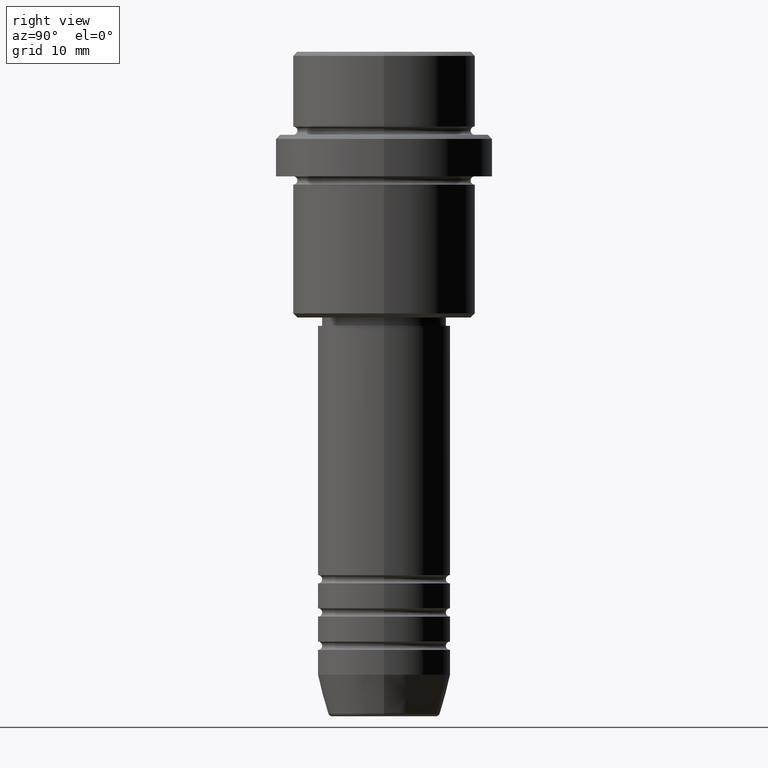
[diagram: clean part render]
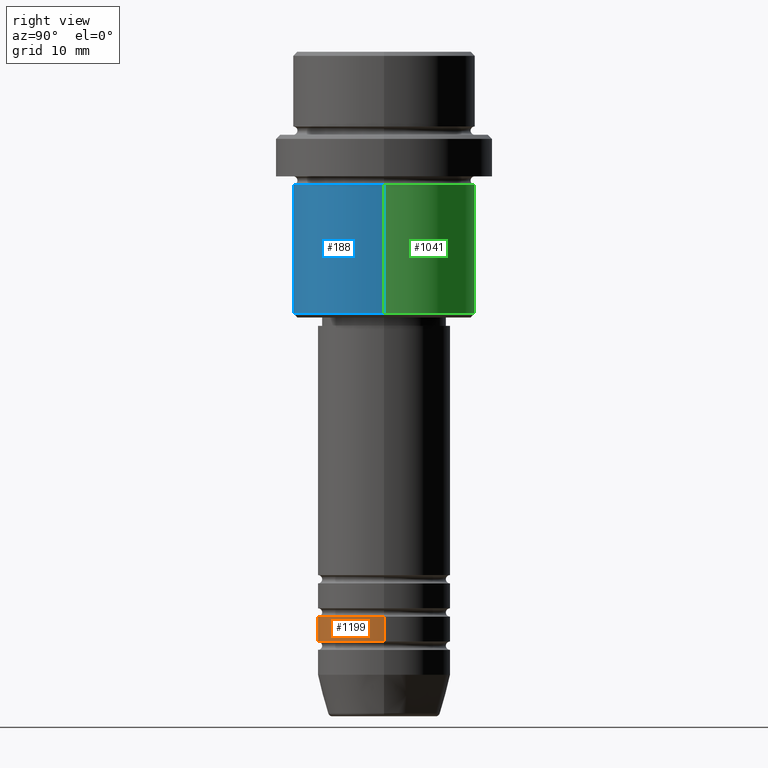
[diagram: same view with three faces highlighted in distinct colors, each labeled with its STEP entity id]
A machine part, right view with three faces highlighted in distinct colors.
Their STEP definitions:

[orange] entity #1199 — the highlighted cylindrical surface (partial cylindrical patch) has radius 8 mm, axis along (-0, -0, 1).
#118 = AXIS2_PLACEMENT_3D ( 'NONE', #1369, #1280, #287 ) ;
#162 = CARTESIAN_POINT ( 'NONE',  ( 8.000000000000000000, 0.000000000000000000, 0.000000000000000000 ) ) ;
#185 = LINE ( 'NONE', #162, #470 ) ;
#272 = DIRECTION ( 'NONE',  ( -0.000000000000000000, -0.000000000000000000, 1.000000000000000000 ) ) ;
#278 = DIRECTION ( 'NONE',  ( -0.000000000000000000, -0.000000000000000000, 1.000000000000000000 ) ) ;
#287 = DIRECTION ( 'NONE',  ( 1.000000000000000000, 0.000000000000000000, 0.000000000000000000 ) ) ;
#329 = VECTOR ( 'NONE', #524, 1000.000000000000000 ) ;
#347 = CIRCLE ( 'NONE', #118, 8.000000000000000000 ) ;
#408 = CYLINDRICAL_SURFACE ( 'NONE', #467, 8.000000000000000000 ) ;
#415 = VERTEX_POINT ( 'NONE', #1198 ) ;
#451 = ORIENTED_EDGE ( 'NONE', *, *, #1340, .F. ) ;
#467 = AXIS2_PLACEMENT_3D ( 'NONE', #841, #272, #1054 ) ;
#470 = VECTOR ( 'NONE', #1165, 1000.000000000000000 ) ;
#495 = AXIS2_PLACEMENT_3D ( 'NONE', #820, #278, #623 ) ;
#503 = VERTEX_POINT ( 'NONE', #906 ) ;
#524 = DIRECTION ( 'NONE',  ( -0.000000000000000000, -0.000000000000000000, 1.000000000000000000 ) ) ;
#570 = VERTEX_POINT ( 'NONE', #675 ) ;
#623 = DIRECTION ( 'NONE',  ( 1.000000000000000000, 0.000000000000000000, 0.000000000000000000 ) ) ;
#656 = EDGE_CURVE ( 'NONE', #570, #503, #185, .T. ) ;
#675 = CARTESIAN_POINT ( 'NONE',  ( 8.000000000000000000, 0.000000000000000000, -70.99999999999990052 ) ) ;
#726 = ORIENTED_EDGE ( 'NONE', *, *, #656, .T. ) ;
#820 = CARTESIAN_POINT ( 'NONE',  ( 0.000000000000000000, 0.000000000000000000, -70.99999999999990052 ) ) ;
#841 = CARTESIAN_POINT ( 'NONE',  ( 0.000000000000000000, 0.000000000000000000, 0.000000000000000000 ) ) ;
#875 = CARTESIAN_POINT ( 'NONE',  ( -8.000000000000000000, 9.797174393178825657E-16, 0.000000000000000000 ) ) ;
#901 = EDGE_CURVE ( 'NONE', #415, #503, #347, .T. ) ;
#906 = CARTESIAN_POINT ( 'NONE',  ( 8.000000000000000000, 0.000000000000000000, -67.99999999999990052 ) ) ;
#924 = ORIENTED_EDGE ( 'NONE', *, *, #901, .F. ) ;
#944 = EDGE_LOOP ( 'NONE', ( #451, #1114, #726, #924 ) ) ;
#945 = EDGE_CURVE ( 'NONE', #1188, #570, #1099, .T. ) ;
#1029 = CARTESIAN_POINT ( 'NONE',  ( -8.000000000000000000, 9.797174393178825657E-16, -70.99999999999990052 ) ) ;
#1054 = DIRECTION ( 'NONE',  ( 1.000000000000000000, 0.000000000000000000, 0.000000000000000000 ) ) ;
#1099 = CIRCLE ( 'NONE', #495, 8.000000000000000000 ) ;
#1114 = ORIENTED_EDGE ( 'NONE', *, *, #945, .T. ) ;
#1165 = DIRECTION ( 'NONE',  ( -0.000000000000000000, -0.000000000000000000, 1.000000000000000000 ) ) ;
#1167 = FACE_OUTER_BOUND ( 'NONE', #944, .T. ) ;
#1188 = VERTEX_POINT ( 'NONE', #1029 ) ;
#1198 = CARTESIAN_POINT ( 'NONE',  ( -8.000000000000000000, 9.797174393178825657E-16, -67.99999999999990052 ) ) ;
#1199 = ADVANCED_FACE ( 'NONE', ( #1167 ), #408, .T. ) ;
#1280 = DIRECTION ( 'NONE',  ( -0.000000000000000000, -0.000000000000000000, 1.000000000000000000 ) ) ;
#1303 = LINE ( 'NONE', #875, #329 ) ;
#1340 = EDGE_CURVE ( 'NONE', #1188, #415, #1303, .T. ) ;
#1369 = CARTESIAN_POINT ( 'NONE',  ( 0.000000000000000000, 0.000000000000000000, -67.99999999999990052 ) ) ;

[blue] entity #188 — the highlighted cylindrical surface (partial cylindrical patch) has radius 11 mm, axis along (-0, -0, 1).
#21 = ORIENTED_EDGE ( 'NONE', *, *, #66, .F. ) ;
#66 = EDGE_CURVE ( 'NONE', #129, #733, #529, .T. ) ;
#83 = VECTOR ( 'NONE', #909, 1000.000000000000000 ) ;
#111 = CARTESIAN_POINT ( 'NONE',  ( 0.000000000000000000, 0.000000000000000000, -31.50000000000000000 ) ) ;
#112 = DIRECTION ( 'NONE',  ( -0.000000000000000000, -0.000000000000000000, 1.000000000000000000 ) ) ;
#129 = VERTEX_POINT ( 'NONE', #1084 ) ;
#140 = DIRECTION ( 'NONE',  ( 1.000000000000000000, 0.000000000000000000, 0.000000000000000000 ) ) ;
#146 = AXIS2_PLACEMENT_3D ( 'NONE', #1171, #574, #140 ) ;
#167 = EDGE_LOOP ( 'NONE', ( #673, #624, #809, #21 ) ) ;
#188 = ADVANCED_FACE ( 'NONE', ( #1389 ), #734, .T. ) ;
#224 = EDGE_CURVE ( 'NONE', #611, #733, #627, .T. ) ;
#268 = CARTESIAN_POINT ( 'NONE',  ( 10.99999999999997158, 0.000000000000000000, -16.00000000000000355 ) ) ;
#363 = CARTESIAN_POINT ( 'NONE',  ( 10.99999999999997158, 0.000000000000000000, 0.000000000000000000 ) ) ;
#475 = DIRECTION ( 'NONE',  ( -0.000000000000000000, -0.000000000000000000, 1.000000000000000000 ) ) ;
#529 = CIRCLE ( 'NONE', #716, 10.99999999999997158 ) ;
#545 = DIRECTION ( 'NONE',  ( -0.000000000000000000, -0.000000000000000000, 1.000000000000000000 ) ) ;
#552 = DIRECTION ( 'NONE',  ( -1.000000000000000000, 0.000000000000000000, 0.000000000000000000 ) ) ;
#574 = DIRECTION ( 'NONE',  ( -0.000000000000000000, -0.000000000000000000, 1.000000000000000000 ) ) ;
#592 = LINE ( 'NONE', #1013, #1407 ) ;
#611 = VERTEX_POINT ( 'NONE', #1261 ) ;
#624 = ORIENTED_EDGE ( 'NONE', *, *, #1400, .T. ) ;
#627 = LINE ( 'NONE', #363, #83 ) ;
#673 = ORIENTED_EDGE ( 'NONE', *, *, #750, .F. ) ;
#716 = AXIS2_PLACEMENT_3D ( 'NONE', #1207, #112, #1337 ) ;
#733 = VERTEX_POINT ( 'NONE', #268 ) ;
#734 = CYLINDRICAL_SURFACE ( 'NONE', #146, 10.99999999999997158 ) ;
#750 = EDGE_CURVE ( 'NONE', #798, #129, #592, .T. ) ;
#798 = VERTEX_POINT ( 'NONE', #1018 ) ;
#809 = ORIENTED_EDGE ( 'NONE', *, *, #224, .T. ) ;
#909 = DIRECTION ( 'NONE',  ( -0.000000000000000000, -0.000000000000000000, 1.000000000000000000 ) ) ;
#925 = AXIS2_PLACEMENT_3D ( 'NONE', #111, #545, #552 ) ;
#1013 = CARTESIAN_POINT ( 'NONE',  ( -10.99999999999997158, 1.347111479062085052E-15, 0.000000000000000000 ) ) ;
#1018 = CARTESIAN_POINT ( 'NONE',  ( -10.99999999999997158, 1.347111479062085052E-15, -31.50000000000000000 ) ) ;
#1084 = CARTESIAN_POINT ( 'NONE',  ( -10.99999999999997158, 1.347111479062085052E-15, -16.00000000000000355 ) ) ;
#1171 = CARTESIAN_POINT ( 'NONE',  ( 0.000000000000000000, 0.000000000000000000, 0.000000000000000000 ) ) ;
#1207 = CARTESIAN_POINT ( 'NONE',  ( 0.000000000000000000, 0.000000000000000000, -16.00000000000000355 ) ) ;
#1261 = CARTESIAN_POINT ( 'NONE',  ( 10.99999999999997158, 0.000000000000000000, -31.50000000000000000 ) ) ;
#1337 = DIRECTION ( 'NONE',  ( 1.000000000000000000, 0.000000000000000000, 0.000000000000000000 ) ) ;
#1386 = CIRCLE ( 'NONE', #925, 10.99999999999997158 ) ;
#1389 = FACE_OUTER_BOUND ( 'NONE', #167, .T. ) ;
#1400 = EDGE_CURVE ( 'NONE', #798, #611, #1386, .T. ) ;
#1407 = VECTOR ( 'NONE', #475, 1000.000000000000000 ) ;

[green] entity #1041 — the highlighted cylindrical surface (partial cylindrical patch) has radius 11 mm, axis along (-0, -0, 1).
#83 = VECTOR ( 'NONE', #909, 1000.000000000000000 ) ;
#119 = EDGE_CURVE ( 'NONE', #733, #129, #376, .T. ) ;
#129 = VERTEX_POINT ( 'NONE', #1084 ) ;
#139 = DIRECTION ( 'NONE',  ( 1.000000000000000000, 0.000000000000000000, 0.000000000000000000 ) ) ;
#224 = EDGE_CURVE ( 'NONE', #611, #733, #627, .T. ) ;
#234 = EDGE_LOOP ( 'NONE', ( #732, #537, #1329, #1306 ) ) ;
#268 = CARTESIAN_POINT ( 'NONE',  ( 10.99999999999997158, 0.000000000000000000, -16.00000000000000355 ) ) ;
#311 = AXIS2_PLACEMENT_3D ( 'NONE', #339, #1321, #1247 ) ;
#339 = CARTESIAN_POINT ( 'NONE',  ( 0.000000000000000000, 0.000000000000000000, -31.50000000000000000 ) ) ;
#356 = CARTESIAN_POINT ( 'NONE',  ( 0.000000000000000000, 0.000000000000000000, 0.000000000000000000 ) ) ;
#363 = CARTESIAN_POINT ( 'NONE',  ( 10.99999999999997158, 0.000000000000000000, 0.000000000000000000 ) ) ;
#376 = CIRCLE ( 'NONE', #1404, 10.99999999999997158 ) ;
#475 = DIRECTION ( 'NONE',  ( -0.000000000000000000, -0.000000000000000000, 1.000000000000000000 ) ) ;
#537 = ORIENTED_EDGE ( 'NONE', *, *, #750, .T. ) ;
#563 = FACE_OUTER_BOUND ( 'NONE', #234, .T. ) ;
#592 = LINE ( 'NONE', #1013, #1407 ) ;
#611 = VERTEX_POINT ( 'NONE', #1261 ) ;
#627 = LINE ( 'NONE', #363, #83 ) ;
#645 = CIRCLE ( 'NONE', #311, 10.99999999999997158 ) ;
#652 = DIRECTION ( 'NONE',  ( 1.000000000000000000, 0.000000000000000000, 0.000000000000000000 ) ) ;
#732 = ORIENTED_EDGE ( 'NONE', *, *, #819, .T. ) ;
#733 = VERTEX_POINT ( 'NONE', #268 ) ;
#740 = AXIS2_PLACEMENT_3D ( 'NONE', #356, #1119, #139 ) ;
#750 = EDGE_CURVE ( 'NONE', #798, #129, #592, .T. ) ;
#798 = VERTEX_POINT ( 'NONE', #1018 ) ;
#819 = EDGE_CURVE ( 'NONE', #611, #798, #645, .T. ) ;
#870 = DIRECTION ( 'NONE',  ( -0.000000000000000000, -0.000000000000000000, 1.000000000000000000 ) ) ;
#884 = CARTESIAN_POINT ( 'NONE',  ( 0.000000000000000000, 0.000000000000000000, -16.00000000000000355 ) ) ;
#909 = DIRECTION ( 'NONE',  ( -0.000000000000000000, -0.000000000000000000, 1.000000000000000000 ) ) ;
#1013 = CARTESIAN_POINT ( 'NONE',  ( -10.99999999999997158, 1.347111479062085052E-15, 0.000000000000000000 ) ) ;
#1018 = CARTESIAN_POINT ( 'NONE',  ( -10.99999999999997158, 1.347111479062085052E-15, -31.50000000000000000 ) ) ;
#1041 = ADVANCED_FACE ( 'NONE', ( #563 ), #1219, .T. ) ;
#1084 = CARTESIAN_POINT ( 'NONE',  ( -10.99999999999997158, 1.347111479062085052E-15, -16.00000000000000355 ) ) ;
#1119 = DIRECTION ( 'NONE',  ( -0.000000000000000000, -0.000000000000000000, 1.000000000000000000 ) ) ;
#1219 = CYLINDRICAL_SURFACE ( 'NONE', #740, 10.99999999999997158 ) ;
#1247 = DIRECTION ( 'NONE',  ( -1.000000000000000000, 0.000000000000000000, 0.000000000000000000 ) ) ;
#1261 = CARTESIAN_POINT ( 'NONE',  ( 10.99999999999997158, 0.000000000000000000, -31.50000000000000000 ) ) ;
#1306 = ORIENTED_EDGE ( 'NONE', *, *, #224, .F. ) ;
#1321 = DIRECTION ( 'NONE',  ( -0.000000000000000000, -0.000000000000000000, 1.000000000000000000 ) ) ;
#1329 = ORIENTED_EDGE ( 'NONE', *, *, #119, .F. ) ;
#1404 = AXIS2_PLACEMENT_3D ( 'NONE', #884, #870, #652 ) ;
#1407 = VECTOR ( 'NONE', #475, 1000.000000000000000 ) ;